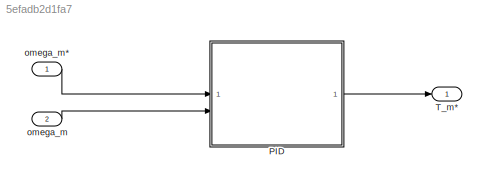
MODEL slx_5efadb2d1fa7
KIND model
CONFIG AbsTol = auto
CONFIG EnableMultiTasking = off
CONFIG FixedStep = auto
CONFIG MaxStep = auto
CONFIG MinStep = auto
CONFIG RelTol = 1e-3
CONFIG SampleTimeConstraint = Unconstrained
CONFIG SolverName = VariableStepAuto
CONFIG StartTime = 0.0
CONFIG StopTime = 10.0
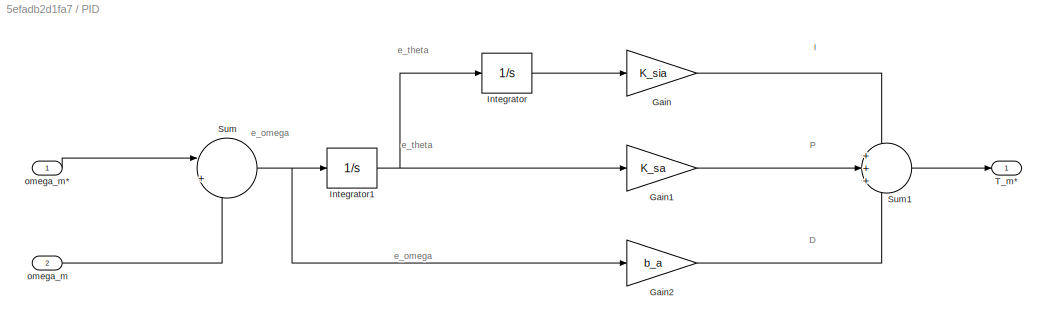
BLOCK [SubSystem] PID
BLOCK [Gain] PID/Gain
  Gain = K_sia
BLOCK [Gain] PID/Gain1
  Gain = K_sa
BLOCK [Gain] PID/Gain2
  Gain = b_a
BLOCK [Integrator] PID/Integrator
BLOCK [Integrator] PID/Integrator1
BLOCK [Sum] PID/Sum
  Inputs = |+-
BLOCK [Sum] PID/Sum1
  Inputs = +++
BLOCK [Outport] PID/T_m*
BLOCK [Inport] PID/omega_m
  Port = 2
BLOCK [Inport] PID/omega_m*
BLOCK [Outport] T_m*
BLOCK [Inport] omega_m
  Port = 2
BLOCK [Inport] omega_m*
ANNOTATION PID: D
ANNOTATION PID: I
ANNOTATION PID: P
ANNOTATION PID: e_omega
ANNOTATION PID: e_theta
LINE PID/Gain1:1 -> PID/Sum1:2
LINE PID/Gain2:1 -> PID/Sum1:3
LINE PID/Gain:1 -> PID/Sum1:1
NET PID/Integrator1:1 -> PID/Gain1:1, PID/Integrator:1
LINE PID/Integrator:1 -> PID/Gain:1
LINE PID/Sum1:1 -> PID/T_m*:1
NET PID/Sum:1 -> PID/Gain2:1, PID/Integrator1:1
LINE PID/omega_m*:1 -> PID/Sum:1
LINE PID/omega_m:1 -> PID/Sum:2
LINE PID:1 -> T_m*:1
LINE omega_m*:1 -> PID:1
LINE omega_m:1 -> PID:2
note: NET lines group one-source signal fan-out (src -> all destinations, sorted); 1:1 wires keep LINE
